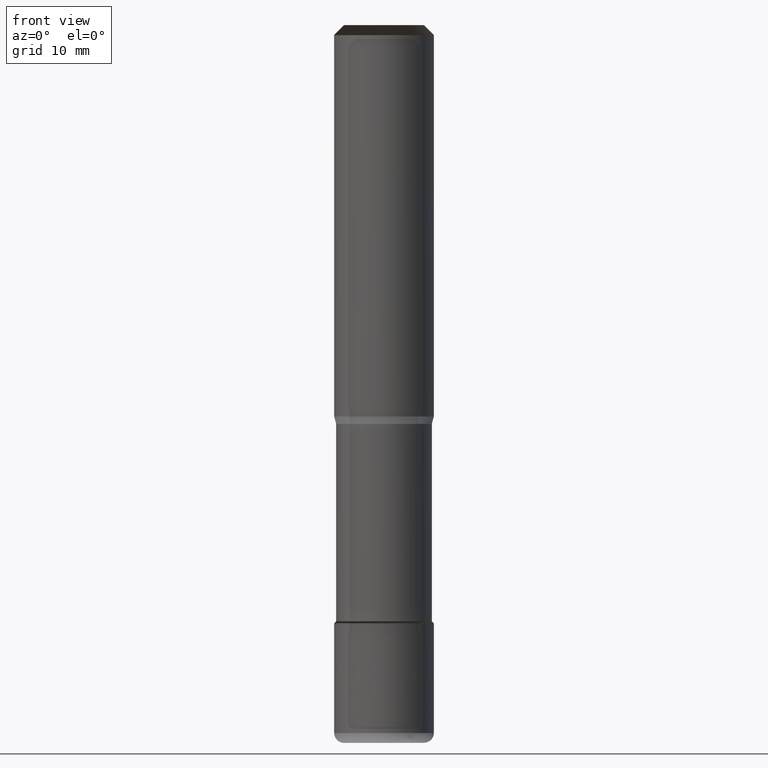
[diagram: clean part render]
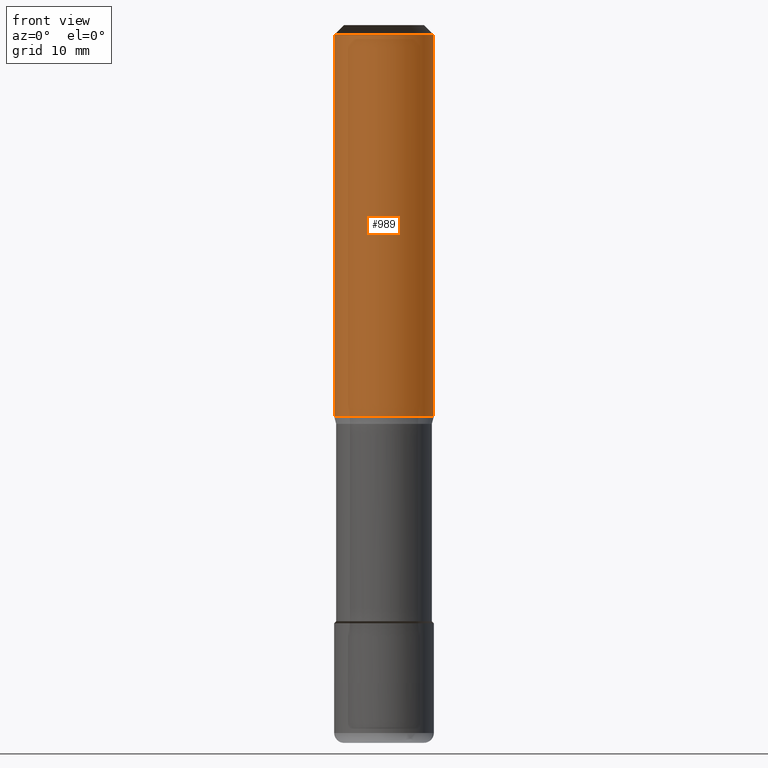
[diagram: same view with one face highlighted and labeled with its STEP entity id]
A machine part, front view. The second image highlights one B-rep face of the part: STEP entity #989.
In plain terms, the highlighted face is a freeform B-spline surface patch.
Its self-contained STEP definition (entity closure, byte-faithful):
#533=CARTESIAN_POINT('',(5.0,0.0,0.0));
#537=CARTESIAN_POINT('',(-5.0,0.0,0.0));
#538=CARTESIAN_POINT('',(5.0,0.0,38.253589838486));
#542=CARTESIAN_POINT('',(-5.0,0.0,38.253589838486));
#558=CARTESIAN_POINT('',(-5.0,-5.0,0.0));
#559=CARTESIAN_POINT('',(0.0,-5.0,0.0));
#560=CARTESIAN_POINT('',(5.0,-5.0,0.0));
#561=CARTESIAN_POINT('',(-5.0,-5.0,38.253589838486));
#562=CARTESIAN_POINT('',(0.0,-5.0,38.253589838486));
#563=CARTESIAN_POINT('',(5.0,-5.0,38.253589838486));
#970=(
BOUNDED_SURFACE()
B_SPLINE_SURFACE(1,2,(
(#537,#558,#559,#560,#533),
(#542,#561,#562,#563,#538)
), .UNSPECIFIED.,.F.,.F.,.F.)
B_SPLINE_SURFACE_WITH_KNOTS((2,2),(3,2,3),(
0.0,1.0),(
0.0,0.5,1.0), .UNSPECIFIED.)
GEOMETRIC_REPRESENTATION_ITEM()
RATIONAL_B_SPLINE_SURFACE(((1.0,0.707106781187,1.0,0.707106781187,1.0),
(1.0,0.707106781187,1.0,0.707106781187,1.0)
))
REPRESENTATION_ITEM('')
SURFACE()
);
#971=(
BOUNDED_CURVE()
B_SPLINE_CURVE(2,(#533,#560,#559,#558,#537),.UNSPECIFIED.,.F.,.F.)
B_SPLINE_CURVE_WITH_KNOTS((3,2,3),
(0.0,0.5,1.0),.UNSPECIFIED.)
CURVE()
GEOMETRIC_REPRESENTATION_ITEM()
RATIONAL_B_SPLINE_CURVE((1.0,0.707106781187,1.0,0.707106781187,1.0))
REPRESENTATION_ITEM('')
);
#972=(
BOUNDED_CURVE()
B_SPLINE_CURVE(1,(#537,#542),.UNSPECIFIED.,.F.,.F.)
B_SPLINE_CURVE_WITH_KNOTS((2,2),
(0.0,1.0),.UNSPECIFIED.)
CURVE()
GEOMETRIC_REPRESENTATION_ITEM()
RATIONAL_B_SPLINE_CURVE((1.0,1.0))
REPRESENTATION_ITEM('')
);
#973=(
BOUNDED_CURVE()
B_SPLINE_CURVE(2,(#542,#561,#562,#563,#538),.UNSPECIFIED.,.F.,.F.)
B_SPLINE_CURVE_WITH_KNOTS((3,2,3),
(0.0,0.5,1.0),.UNSPECIFIED.)
CURVE()
GEOMETRIC_REPRESENTATION_ITEM()
RATIONAL_B_SPLINE_CURVE((1.0,0.707106781187,1.0,0.707106781187,1.0))
REPRESENTATION_ITEM('')
);
#974=(
BOUNDED_CURVE()
B_SPLINE_CURVE(1,(#538,#533),.UNSPECIFIED.,.F.,.F.)
B_SPLINE_CURVE_WITH_KNOTS((2,2),
(0.0,1.0),.UNSPECIFIED.)
CURVE()
GEOMETRIC_REPRESENTATION_ITEM()
RATIONAL_B_SPLINE_CURVE((1.0,1.0))
REPRESENTATION_ITEM('')
);
#975=VERTEX_POINT('',#533);
#976=VERTEX_POINT('',#537);
#977=VERTEX_POINT('',#538);
#978=VERTEX_POINT('',#542);
#979=EDGE_CURVE('',#975,#976,#971,.T.);
#980=EDGE_CURVE('',#976,#978,#972,.T.);
#981=EDGE_CURVE('',#978,#977,#973,.T.);
#982=EDGE_CURVE('',#977,#975,#974,.T.);
#983=ORIENTED_EDGE('',*,*,#979,.T.);
#984=ORIENTED_EDGE('',*,*,#980,.T.);
#985=ORIENTED_EDGE('',*,*,#981,.T.);
#986=ORIENTED_EDGE('',*,*,#982,.T.);
#987=EDGE_LOOP('',(#983,#984,#985,#986));
#988=FACE_OUTER_BOUND('',#987,.T.);
#989=ADVANCED_FACE('',(#988),#970,.T.);